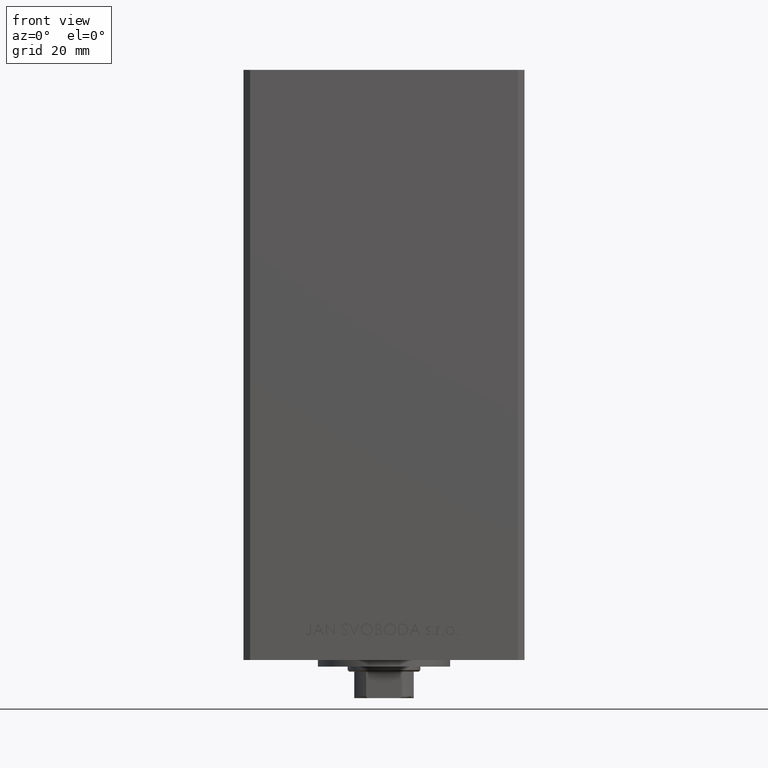
[diagram: clean part render]
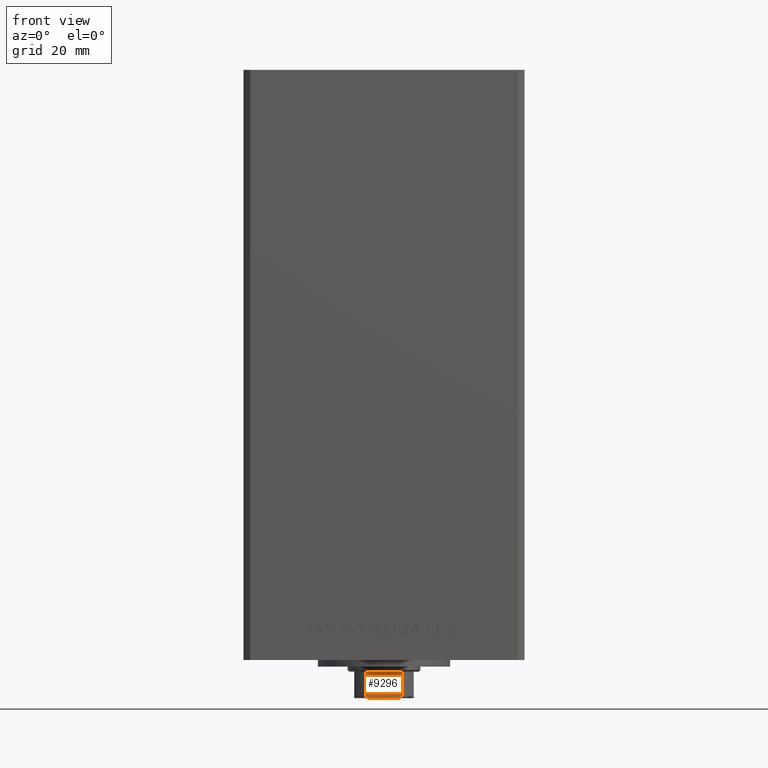
[diagram: same view with one face highlighted and labeled with its STEP entity id]
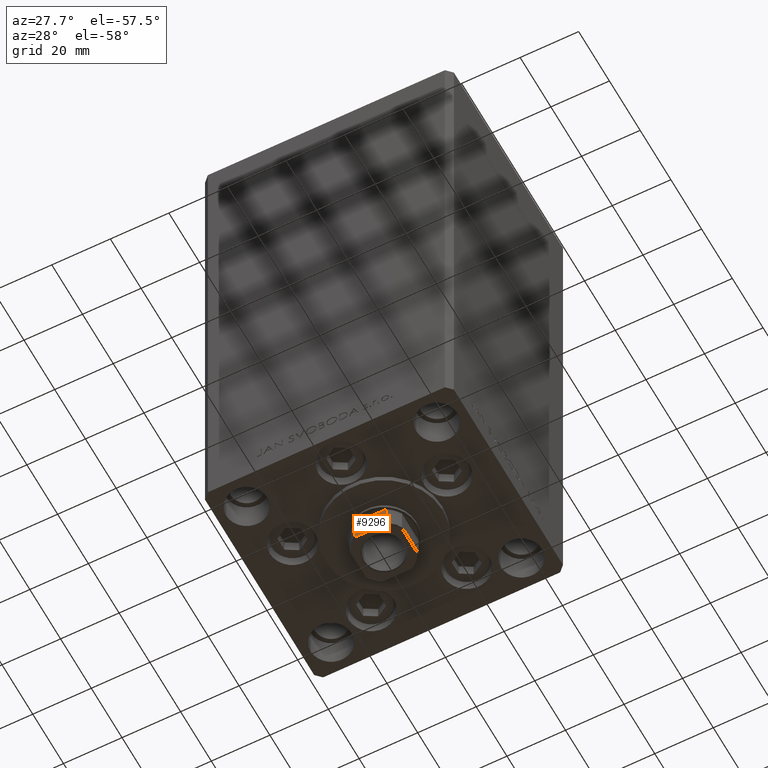
[diagram: same view with one face highlighted and labeled with its STEP entity id]
A machine part, front view. The second image highlights one B-rep face of the part: STEP entity #9296.
A second angle (auxiliary view) of the same face is appended — the face is thin or edge-on in the first view.
In plain terms, the highlighted planar face has unit normal (0, 1, 0).
Its self-contained STEP definition (entity closure, byte-faithful):
#350 = ORIENTED_EDGE ( 'NONE', *, *, #40897, .F. ) ;
#1197 = EDGE_LOOP ( 'NONE', ( #350, #41834, #11784, #19308, #22903, #43682 ) ) ;
#1379 = CARTESIAN_POINT ( 'NONE',  ( 5.174818616237112145, -9.000000000000003553, 155.5825218846533460 ) ) ;
#1611 = CARTESIAN_POINT ( 'NONE',  ( 4.778533838065915695, -9.000000000000001776, 155.7278291476469860 ) ) ;
#4330 = FACE_OUTER_BOUND ( 'NONE', #1197, .T. ) ;
#4901 = AXIS2_PLACEMENT_3D ( 'NONE', #34733, #46618, #5293 ) ;
#5293 = DIRECTION ( 'NONE',  ( 0.000000000000000000, -0.000000000000000000, 1.000000000000000000 ) ) ;
#6272 = EDGE_CURVE ( 'NONE', #38788, #20854, #17279, .T. ) ;
#7703 = VERTEX_POINT ( 'NONE', #31717 ) ;
#8437 = CARTESIAN_POINT ( 'NONE',  ( -8.999999999999998224, -9.000000000000001776, 147.7500000000000000 ) ) ;
#9296 = ADVANCED_FACE ( 'NONE', ( #4330 ), #19407, .F. ) ;
#9413 = CARTESIAN_POINT ( 'NONE',  ( -4.358898943540671311, -9.000000000000001776, 155.7500000000000000 ) ) ;
#10872 = CARTESIAN_POINT ( 'NONE',  ( -5.173732970196579295, -9.000000000000003553, 155.5831808643799263 ) ) ;
#11211 = LINE ( 'NONE', #15158, #22568 ) ;
#11784 = ORIENTED_EDGE ( 'NONE', *, *, #31690, .F. ) ;
#13002 = CARTESIAN_POINT ( 'NONE',  ( 4.569278586016982224, -9.000000000000003553, 155.7500000000000284 ) ) ;
#14045 = EDGE_CURVE ( 'NONE', #41608, #40991, #30942, .T. ) ;
#14139 = DIRECTION ( 'NONE',  ( -0.000000000000000000, -0.000000000000000000, 1.000000000000000000 ) ) ;
#15057 = CARTESIAN_POINT ( 'NONE',  ( -5.390945448132514528, -9.000000000000005329, 155.3554816538970726 ) ) ;
#15158 = CARTESIAN_POINT ( 'NONE',  ( -5.408326913195988794, -8.999999999999998224, -0.001000000000001000089 ) ) ;
#16613 = VECTOR ( 'NONE', #28644, 1000.000000000000000 ) ;
#16938 = CARTESIAN_POINT ( 'NONE',  ( 5.390954572107323983, -9.000000000000005329, 155.3553628521399901 ) ) ;
#17279 = B_SPLINE_CURVE_WITH_KNOTS ( 'NONE', 3,
 ( #45261, #29914, #48481, #41293, #10872, #33624, #25957, #15057, #29682, #44772 ),
 .UNSPECIFIED., .F., .F.,
 ( 4, 2, 2, 2, 4 ),
 ( 0.000000000000000000, 0.0006221106941441050886, 0.0009331660412161576872, 0.001088693714752184908, 0.001244221388288212129 ),
 .UNSPECIFIED. ) ;
#18229 = EDGE_CURVE ( 'NONE', #7703, #29762, #30721, .T. ) ;
#19308 = ORIENTED_EDGE ( 'NONE', *, *, #14045, .T. ) ;
#19407 = PLANE ( 'NONE',  #4901 ) ;
#19970 = VECTOR ( 'NONE', #14139, 1000.000000000000000 ) ;
#20166 = CARTESIAN_POINT ( 'NONE',  ( 5.408326913195991459, -9.000000000000001776, 155.3035720727335445 ) ) ;
#20854 = VERTEX_POINT ( 'NONE', #25500 ) ;
#21719 = CARTESIAN_POINT ( 'NONE',  ( 5.408326913195988794, -8.999999999999998224, 147.7500000000000853 ) ) ;
#21755 = EDGE_CURVE ( 'NONE', #40991, #7703, #25519, .T. ) ;
#22568 = VECTOR ( 'NONE', #30508, 1000.000000000000000 ) ;
#22903 = ORIENTED_EDGE ( 'NONE', *, *, #21755, .T. ) ;
#24940 = CARTESIAN_POINT ( 'NONE',  ( -8.999999999999998224, -9.000000000000001776, 155.7500000000000000 ) ) ;
#25500 = CARTESIAN_POINT ( 'NONE',  ( -5.408326913195988794, -8.999999999999998224, 155.2500000000000000 ) ) ;
#25519 = LINE ( 'NONE', #29954, #19970 ) ;
#25957 = CARTESIAN_POINT ( 'NONE',  ( -5.335288102212742523, -9.000000000000003553, 155.4456905402762743 ) ) ;
#28644 = DIRECTION ( 'NONE',  ( 1.000000000000000000, 0.000000000000000000, 0.000000000000000000 ) ) ;
#29682 = CARTESIAN_POINT ( 'NONE',  ( -5.408326913195990571, -9.000000000000003553, 155.3037434673188670 ) ) ;
#29762 = VERTEX_POINT ( 'NONE', #36931 ) ;
#29914 = CARTESIAN_POINT ( 'NONE',  ( -4.569272810556663345, -9.000000000000003553, 155.7500000000000568 ) ) ;
#29954 = CARTESIAN_POINT ( 'NONE',  ( 5.408326913195988794, -8.999999999999998224, -0.001000000000001000089 ) ) ;
#30508 = DIRECTION ( 'NONE',  ( -0.000000000000000000, -0.000000000000000000, 1.000000000000000000 ) ) ;
#30721 = B_SPLINE_CURVE_WITH_KNOTS ( 'NONE', 3,
 ( #43421, #20166, #16938, #32039, #39454, #1379, #31549, #1611, #13002, #35996 ),
 .UNSPECIFIED., .F., .F.,
 ( 4, 2, 2, 2, 4 ),
 ( 0.000000000000000000, 0.0001582447020887985415, 0.0003164894041775970831, 0.0006329788083552442563, 0.001265957616710536218 ),
 .UNSPECIFIED. ) ;
#30803 = VECTOR ( 'NONE', #34896, 1000.000000000000000 ) ;
#30942 = LINE ( 'NONE', #8437, #30803 ) ;
#31160 = CARTESIAN_POINT ( 'NONE',  ( -5.408326913195988794, -8.999999999999998224, 147.7500000000000853 ) ) ;
#31549 = CARTESIAN_POINT ( 'NONE',  ( 5.077896145217236423, -9.000000000000003553, 155.6273016776067095 ) ) ;
#31690 = EDGE_CURVE ( 'NONE', #41608, #20854, #11211, .T. ) ;
#31717 = CARTESIAN_POINT ( 'NONE',  ( 5.408326913195988794, -8.999999999999998224, 155.2500000000000000 ) ) ;
#32039 = CARTESIAN_POINT ( 'NONE',  ( 5.335664150027727537, -8.999999999999998224, 155.4451843380012974 ) ) ;
#33624 = CARTESIAN_POINT ( 'NONE',  ( -5.297634495023404000, -9.000000000000007105, 155.4844228052780863 ) ) ;
#34733 = CARTESIAN_POINT ( 'NONE',  ( -8.999999999999998224, -9.000000000000001776, 155.7500000000000000 ) ) ;
#34896 = DIRECTION ( 'NONE',  ( 1.000000000000000000, 0.000000000000000000, 0.000000000000000000 ) ) ;
#35575 = LINE ( 'NONE', #24940, #16613 ) ;
#35996 = CARTESIAN_POINT ( 'NONE',  ( 4.358898943540671311, -9.000000000000001776, 155.7500000000000000 ) ) ;
#36931 = CARTESIAN_POINT ( 'NONE',  ( 4.358898943540671311, -9.000000000000001776, 155.7500000000000000 ) ) ;
#38788 = VERTEX_POINT ( 'NONE', #9413 ) ;
#39454 = CARTESIAN_POINT ( 'NONE',  ( 5.298186678102081437, -9.000000000000001776, 155.4838781215005099 ) ) ;
#40897 = EDGE_CURVE ( 'NONE', #38788, #29762, #35575, .T. ) ;
#40991 = VERTEX_POINT ( 'NONE', #21719 ) ;
#41293 = CARTESIAN_POINT ( 'NONE',  ( -5.074490744525473218, -8.999999999999998224, 155.6287200784332470 ) ) ;
#41608 = VERTEX_POINT ( 'NONE', #31160 ) ;
#41834 = ORIENTED_EDGE ( 'NONE', *, *, #6272, .T. ) ;
#43421 = CARTESIAN_POINT ( 'NONE',  ( 5.408326913195988794, -8.999999999999998224, 155.2500000000000000 ) ) ;
#43682 = ORIENTED_EDGE ( 'NONE', *, *, #18229, .T. ) ;
#44772 = CARTESIAN_POINT ( 'NONE',  ( -5.408326913195988794, -8.999999999999998224, 155.2500000000000000 ) ) ;
#45261 = CARTESIAN_POINT ( 'NONE',  ( -4.358898943540671311, -9.000000000000001776, 155.7500000000000000 ) ) ;
#46618 = DIRECTION ( 'NONE',  ( 0.000000000000000000, 1.000000000000000000, 0.000000000000000000 ) ) ;
#48481 = CARTESIAN_POINT ( 'NONE',  ( -4.775913644518293033, -9.000000000000001776, 155.7281460743083414 ) ) ;